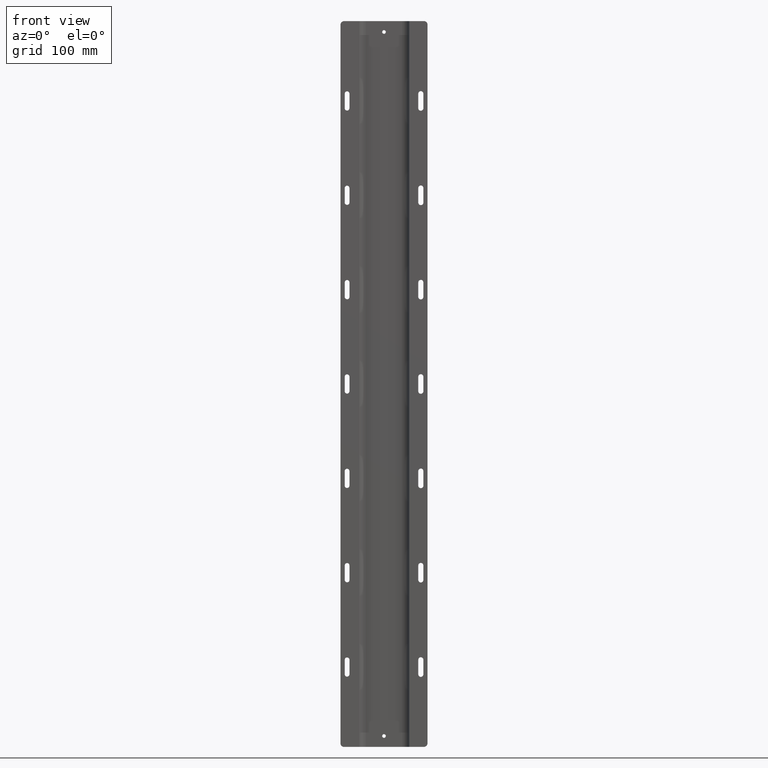
[diagram: clean part render]
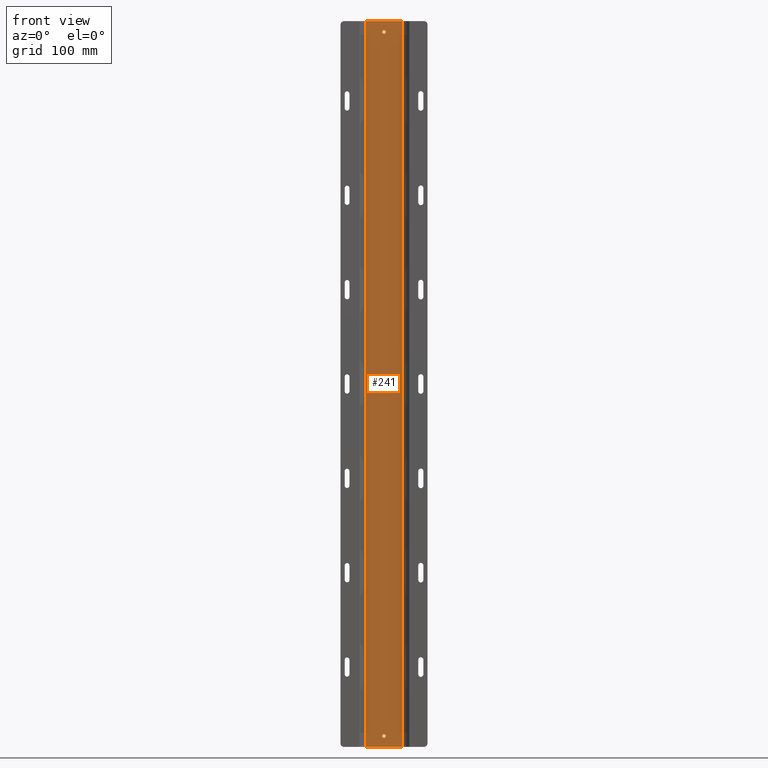
[diagram: same view with one face highlighted and labeled with its STEP entity id]
A machine part, front view. The second image highlights one B-rep face of the part: STEP entity #241.
In plain terms, the highlighted planar face has unit normal (-0, 1, 0).
Its self-contained STEP definition (entity closure, byte-faithful):
#5 = ORIENTED_EDGE ( 'NONE', *, *, #4238, .F. ) ;
#70 = EDGE_LOOP ( 'NONE', ( #5307, #4318, #1073, #1857 ) ) ;
#208 = CARTESIAN_POINT ( 'NONE',  ( -25.00000000000007100, -2.671474153004282900E-013, 500.0000000000000000 ) ) ;
#241 = ADVANCED_FACE ( 'NONE', ( #2982, #5682, #1919 ), #2455, .F. ) ;
#242 = VERTEX_POINT ( 'NONE', #5327 ) ;
#343 = DIRECTION ( 'NONE',  ( 0.0000000000000000000, 0.0000000000000000000, -1.000000000000000000 ) ) ;
#365 = CARTESIAN_POINT ( 'NONE',  ( 0.0000000000000000000, -1.249139735130297400E-015, 485.0000000000000000 ) ) ;
#451 = ORIENTED_EDGE ( 'NONE', *, *, #3626, .F. ) ;
#687 = CARTESIAN_POINT ( 'NONE',  ( 3.061616997868360500E-016, -1.249139735130297400E-015, 487.5000000000000000 ) ) ;
#759 = CIRCLE ( 'NONE', #2645, 2.500000000000002200 ) ;
#928 = CARTESIAN_POINT ( 'NONE',  ( 0.0000000000000000000, -1.249139735130297400E-015, -485.0000000000000000 ) ) ;
#944 = VECTOR ( 'NONE', #3217, 1000.000000000000000 ) ;
#1073 = ORIENTED_EDGE ( 'NONE', *, *, #2631, .F. ) ;
#1126 = LINE ( 'NONE', #6000, #4211 ) ;
#1155 = VERTEX_POINT ( 'NONE', #208 ) ;
#1256 = ORIENTED_EDGE ( 'NONE', *, *, #1620, .F. ) ;
#1359 = DIRECTION ( 'NONE',  ( -0.0000000000000000000, -1.000000000000000000, -0.0000000000000000000 ) ) ;
#1425 = DIRECTION ( 'NONE',  ( -0.0000000000000000000, -0.0000000000000000000, -1.000000000000000000 ) ) ;
#1453 = VECTOR ( 'NONE', #4190, 1000.000000000000000 ) ;
#1620 = EDGE_CURVE ( 'NONE', #3176, #6048, #3593, .T. ) ;
#1695 = EDGE_LOOP ( 'NONE', ( #5, #451 ) ) ;
#1777 = CARTESIAN_POINT ( 'NONE',  ( -25.00000000000007100, -2.670654225111348300E-013, -500.0000000000000000 ) ) ;
#1831 = CARTESIAN_POINT ( 'NONE',  ( 0.0000000000000000000, -1.249139735130297400E-015, -487.5000000000000000 ) ) ;
#1857 = ORIENTED_EDGE ( 'NONE', *, *, #2770, .T. ) ;
#1891 = EDGE_CURVE ( 'NONE', #6048, #3176, #4364, .T. ) ;
#1904 = DIRECTION ( 'NONE',  ( 0.0000000000000000000, 0.0000000000000000000, -1.000000000000000000 ) ) ;
#1919 = FACE_OUTER_BOUND ( 'NONE', #70, .T. ) ;
#2136 = VERTEX_POINT ( 'NONE', #4495 ) ;
#2289 = LINE ( 'NONE', #1777, #1453 ) ;
#2300 = EDGE_LOOP ( 'NONE', ( #1256, #3428 ) ) ;
#2418 = DIRECTION ( 'NONE',  ( -1.047445008332814600E-014, 1.000000000000000000, 0.0000000000000000000 ) ) ;
#2455 = PLANE ( 'NONE',  #5875 ) ;
#2506 = DIRECTION ( 'NONE',  ( 0.0000000000000000000, 0.0000000000000000000, -1.000000000000000000 ) ) ;
#2631 = EDGE_CURVE ( 'NONE', #1155, #3881, #6190, .T. ) ;
#2645 = AXIS2_PLACEMENT_3D ( 'NONE', #928, #1359, #1904 ) ;
#2713 = VERTEX_POINT ( 'NONE', #1831 ) ;
#2770 = EDGE_CURVE ( 'NONE', #1155, #2136, #4821, .T. ) ;
#2777 = CIRCLE ( 'NONE', #5884, 2.500000000000002200 ) ;
#2844 = CARTESIAN_POINT ( 'NONE',  ( 25.00000000000006400, 2.566570816552738900E-013, 500.0000000000000000 ) ) ;
#2864 = CARTESIAN_POINT ( 'NONE',  ( 25.00000000000006400, 2.566570816552738900E-013, -500.0000000000000000 ) ) ;
#2927 = AXIS2_PLACEMENT_3D ( 'NONE', #4926, #4982, #2965 ) ;
#2965 = DIRECTION ( 'NONE',  ( 0.0000000000000000000, 0.0000000000000000000, -1.000000000000000000 ) ) ;
#2982 = FACE_BOUND ( 'NONE', #1695, .T. ) ;
#3037 = DIRECTION ( 'NONE',  ( -0.0000000000000000000, -0.0000000000000000000, -1.000000000000000000 ) ) ;
#3176 = VERTEX_POINT ( 'NONE', #6232 ) ;
#3217 = DIRECTION ( 'NONE',  ( 1.000000000000000000, 1.047445008332814600E-014, 0.0000000000000000000 ) ) ;
#3428 = ORIENTED_EDGE ( 'NONE', *, *, #1891, .F. ) ;
#3436 = DIRECTION ( 'NONE',  ( -1.000000000000000000, -1.047445008332814600E-014, 0.0000000000000000000 ) ) ;
#3593 = CIRCLE ( 'NONE', #2927, 2.500000000000002200 ) ;
#3626 = EDGE_CURVE ( 'NONE', #242, #2713, #2777, .T. ) ;
#3881 = VERTEX_POINT ( 'NONE', #2844 ) ;
#4190 = DIRECTION ( 'NONE',  ( 1.000000000000000000, 1.047445008332814600E-014, 0.0000000000000000000 ) ) ;
#4211 = VECTOR ( 'NONE', #3037, 1000.000000000000000 ) ;
#4238 = EDGE_CURVE ( 'NONE', #2713, #242, #759, .T. ) ;
#4240 = CARTESIAN_POINT ( 'NONE',  ( -25.00000000000007100, -2.670654225111348300E-013, 500.0000000000000000 ) ) ;
#4318 = ORIENTED_EDGE ( 'NONE', *, *, #6061, .F. ) ;
#4364 = CIRCLE ( 'NONE', #5121, 2.500000000000002200 ) ;
#4495 = CARTESIAN_POINT ( 'NONE',  ( -25.00000000000007100, -2.671474153004282900E-013, -500.0000000000000000 ) ) ;
#4535 = CARTESIAN_POINT ( 'NONE',  ( 0.0000000000000000000, -1.249139735130297400E-015, -485.0000000000000000 ) ) ;
#4740 = DIRECTION ( 'NONE',  ( -0.0000000000000000000, -1.000000000000000000, -0.0000000000000000000 ) ) ;
#4821 = LINE ( 'NONE', #5864, #5734 ) ;
#4926 = CARTESIAN_POINT ( 'NONE',  ( 0.0000000000000000000, -1.249139735130297400E-015, 485.0000000000000000 ) ) ;
#4982 = DIRECTION ( 'NONE',  ( -0.0000000000000000000, -1.000000000000000000, -0.0000000000000000000 ) ) ;
#5052 = VERTEX_POINT ( 'NONE', #2864 ) ;
#5121 = AXIS2_PLACEMENT_3D ( 'NONE', #365, #4740, #343 ) ;
#5307 = ORIENTED_EDGE ( 'NONE', *, *, #5688, .T. ) ;
#5327 = CARTESIAN_POINT ( 'NONE',  ( 3.061616997868360500E-016, -1.249139735130297400E-015, -482.5000000000000000 ) ) ;
#5473 = DIRECTION ( 'NONE',  ( -0.0000000000000000000, -1.000000000000000000, -0.0000000000000000000 ) ) ;
#5682 = FACE_BOUND ( 'NONE', #2300, .T. ) ;
#5688 = EDGE_CURVE ( 'NONE', #2136, #5052, #2289, .T. ) ;
#5734 = VECTOR ( 'NONE', #1425, 1000.000000000000000 ) ;
#5864 = CARTESIAN_POINT ( 'NONE',  ( -25.00000000000007100, -2.671474153004282900E-013, 500.0000000000000000 ) ) ;
#5875 = AXIS2_PLACEMENT_3D ( 'NONE', #6314, #2418, #3436 ) ;
#5884 = AXIS2_PLACEMENT_3D ( 'NONE', #4535, #5473, #2506 ) ;
#6000 = CARTESIAN_POINT ( 'NONE',  ( 25.00000000000006400, 2.566570816552738900E-013, 500.0000000000000000 ) ) ;
#6048 = VERTEX_POINT ( 'NONE', #687 ) ;
#6061 = EDGE_CURVE ( 'NONE', #3881, #5052, #1126, .T. ) ;
#6190 = LINE ( 'NONE', #4240, #944 ) ;
#6232 = CARTESIAN_POINT ( 'NONE',  ( 0.0000000000000000000, -1.249139735130297400E-015, 482.5000000000000000 ) ) ;
#6314 = CARTESIAN_POINT ( 'NONE',  ( -25.00000000000007100, -2.670654225111348300E-013, 500.0000000000000000 ) ) ;